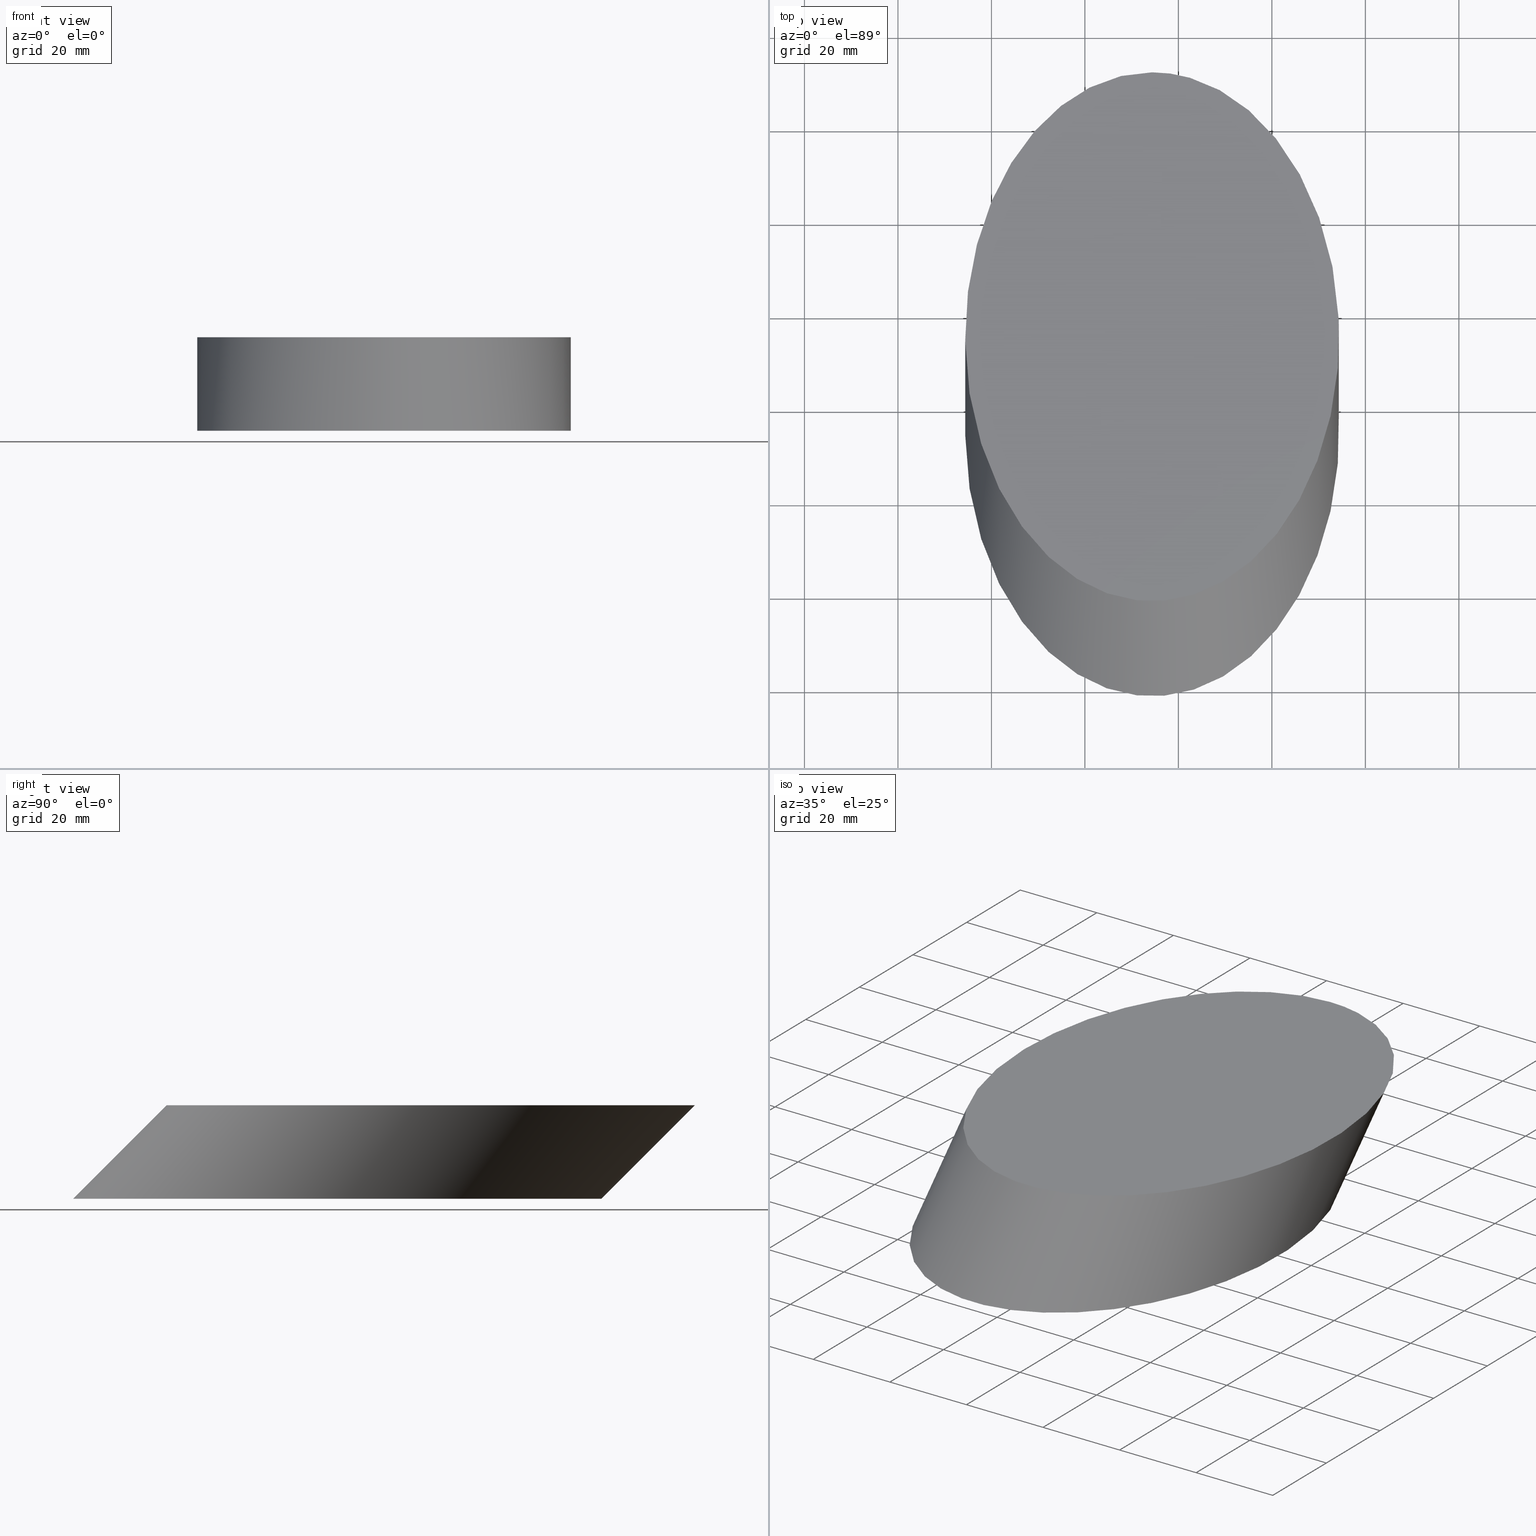
[diagram: canonical four-view strip — front | top / right | iso, engineering-drawing reading convention]
A machine part, canonical four-view strip (front | top / right | iso — engineering-drawing reading convention). The complete STEP part file that produces these views, byte-faithful:
ISO-10303-21;
HEADER;
FILE_DESCRIPTION (( 'STEP AP203' ),
    '1' );
FILE_NAME ('290007.STEP',
    '2022-05-24T07:40:24',
    ( '' ),
    ( '' ),
    'SwSTEP 2.0',
    'SolidWorks 2020',
    '' );
FILE_SCHEMA (( 'CONFIG_CONTROL_DESIGN' ));
ENDSEC;

DATA;
#1 = MANIFOLD_SOLID_BREP ( '͹̨-����1', #129 ) ;
#2 = ADVANCED_BREP_SHAPE_REPRESENTATION ( '290007', ( #1, #136 ), #50 ) ;
#3 = LOCAL_TIME ( 15, 40, 24.00000000000000000, #44 ) ;
#4 = CARTESIAN_POINT ( 'NONE',  ( -25.60761701828393910, 92.36387153032208630, -1.040834085586084099E-14 ) ) ;
#5 = CARTESIAN_POINT ( 'NONE',  ( 134.3923829817160254, -20.78612846967790873, 0.000000000000000000 ) ) ;
#6 = ADVANCED_FACE ( 'NONE', ( #28, #98 ), #40, .T. ) ;
#7 = FACE_OUTER_BOUND ( 'NONE', #37, .T. ) ;
#8 = CARTESIAN_POINT ( 'NONE',  ( 0.000000000000000000, 0.000000000000000000, 0.000000000000000000 ) ) ;
#9 = CARTESIAN_POINT ( 'NONE',  ( 54.39238298171605379, 92.36387153032210051, 0.000000000000000000 ) ) ;
#10 = DIRECTION ( 'NONE',  ( 0.000000000000000000, 0.000000000000000000, 1.000000000000000000 ) ) ;
#11 = DATE_AND_TIME ( #125, #142 ) ;
#12 = EDGE_CURVE ( 'NONE', #30, #30, #13, .T. ) ;
#13 =( BOUNDED_CURVE ( )  B_SPLINE_CURVE ( 3, ( #123, #63, #48, #99, #144, #15, #16 ),
 .UNSPECIFIED., .T., .T. ) 
 B_SPLINE_CURVE_WITH_KNOTS ( ( 4, 3, 4 ),
 ( 0.000000000000000000, 3.141592653589793116, 6.283185307179586232 ),
 .UNSPECIFIED. ) 
 CURVE ( )  GEOMETRIC_REPRESENTATION_ITEM ( )  RATIONAL_B_SPLINE_CURVE ( ( 1.000000000000000000, 0.3333333333333333703, 0.3333333333333333703, 1.000000000000000000, 0.3333333333333333703, 0.3333333333333333703, 1.000000000000000000 ) ) 
 REPRESENTATION_ITEM ( '' )  );
#14 = CARTESIAN_POINT ( 'NONE',  ( 54.39238298171605379, 92.36387153032208630, -1.040834085586084257E-14 ) ) ;
#15 = CARTESIAN_POINT ( 'NONE',  ( 134.3923829817160538, 72.36387153032197261, -20.00000000000000355 ) ) ;
#16 = CARTESIAN_POINT ( 'NONE',  ( 54.39238298171605379, 72.36387153032198682, -20.00000000000000355 ) ) ;
#17 = APPROVAL_ROLE ( '' ) ;
#18 = VERTEX_POINT ( 'NONE', #9 ) ;
#19 = APPROVAL_DATE_TIME ( #54, #88 ) ;
#20 = CALENDAR_DATE ( 2022, 24, 5 ) ;
#21 = SHAPE_DEFINITION_REPRESENTATION ( #71, #2 ) ;
#22 = SECURITY_CLASSIFICATION ( '', '', #45 ) ;
#23 = CARTESIAN_POINT ( 'NONE',  ( 134.3923829817160538, 92.36387153032208630, -1.040834085586084099E-14 ) ) ;
#24 = ORIENTED_EDGE ( 'NONE', *, *, #100, .F. ) ;
#25 = PRODUCT ( '290007', '290007', '', ( #141 ) ) ;
#26 = CARTESIAN_POINT ( 'NONE',  ( 54.39238298171604669, -40.78612846967801886, -20.00000000000000711 ) ) ;
#27 = CC_DESIGN_PERSON_AND_ORGANIZATION_ASSIGNMENT ( #92, #140, ( #59 ) ) ;
#28 = FACE_OUTER_BOUND ( 'NONE', #47, .T. ) ;
#29 = PERSON_AND_ORGANIZATION_ROLE ( 'creator' ) ;
#30 = VERTEX_POINT ( 'NONE', #51 ) ;
#31 = PERSON_AND_ORGANIZATION ( #113, #76 ) ;
#32 = PERSON_AND_ORGANIZATION ( #113, #76 ) ;
#33 = APPROVAL_STATUS ( 'not_yet_approved' ) ;
#34 = CC_DESIGN_PERSON_AND_ORGANIZATION_ASSIGNMENT ( #31, #55, ( #22 ) ) ;
#35 = CC_DESIGN_DATE_AND_TIME_ASSIGNMENT ( #95, #116, ( #22 ) ) ;
#36 = CARTESIAN_POINT ( 'NONE',  ( 54.39238298171605379, 92.36387153032208630, -1.040834085586084257E-14 ) ) ;
#37 = EDGE_LOOP ( 'NONE', ( #135 ) ) ;
#38 = UNCERTAINTY_MEASURE_WITH_UNIT (LENGTH_MEASURE( 1.000000000000000082E-05 ), #139, 'distance_accuracy_value', 'NONE');
#39 = APPROVAL_PERSON_ORGANIZATION ( #84, #88, #17 ) ;
#40 =( BOUNDED_SURFACE ( )  B_SPLINE_SURFACE ( 3, 1, ( 
 ( #77, #14 ),
 ( #111, #4 ),
 ( #62, #132 ),
 ( #26, #78 ),
 ( #122, #133 ),
 ( #97, #23 ),
 ( #65, #36 ) ),
 .UNSPECIFIED., .T., .F., .F. ) 
 B_SPLINE_SURFACE_WITH_KNOTS ( ( 4, 3, 4 ),
 ( 2, 2 ),
 ( 0.000000000000000000, 0.5000000000000000000, 1.000000000000000000 ),
 ( 0.000000000000000000, 1.000000000000000000 ),
 .UNSPECIFIED. ) 
 GEOMETRIC_REPRESENTATION_ITEM ( )  RATIONAL_B_SPLINE_SURFACE ( (
 ( 1.000000000000000000, 1.000000000000000000),
 ( 0.3333333333333333703, 0.3333333333333333703),
 ( 0.3333333333333333703, 0.3333333333333333703),
 ( 1.000000000000000000, 1.000000000000000000),
 ( 0.3333333333333333703, 0.3333333333333333703),
 ( 0.3333333333333333703, 0.3333333333333333703),
 ( 1.000000000000000000, 1.000000000000000000) ) ) 
 REPRESENTATION_ITEM ( '' )  SURFACE ( )  );
#41 = DIRECTION ( 'NONE',  ( 1.000000000000000000, 0.000000000000000000, -0.000000000000000000 ) ) ;
#42 = CARTESIAN_POINT ( 'NONE',  ( -25.60761701828394266, -20.78612846967788030, 0.000000000000000000 ) ) ;
#43 = FACE_OUTER_BOUND ( 'NONE', #75, .T. ) ;
#44 = COORDINATED_UNIVERSAL_TIME_OFFSET ( 8, 0, .AHEAD. ) ;
#45 = SECURITY_CLASSIFICATION_LEVEL ( 'unclassified' ) ;
#46 = CC_DESIGN_PERSON_AND_ORGANIZATION_ASSIGNMENT ( #104, #49, ( #59 ) ) ;
#47 = EDGE_LOOP ( 'NONE', ( #79 ) ) ;
#48 = CARTESIAN_POINT ( 'NONE',  ( -25.60761701828394266, -40.78612846967799754, -20.00000000000000355 ) ) ;
#49 = PERSON_AND_ORGANIZATION_ROLE ( 'creator' ) ;
#50 =( GEOMETRIC_REPRESENTATION_CONTEXT ( 3 ) GLOBAL_UNCERTAINTY_ASSIGNED_CONTEXT ( ( #38 ) ) GLOBAL_UNIT_ASSIGNED_CONTEXT ( ( #139, #145, #126 ) ) REPRESENTATION_CONTEXT ( 'NONE', 'WORKASPACE' ) );
#51 = CARTESIAN_POINT ( 'NONE',  ( 54.39238298171605379, 72.36387153032198682, -20.00000000000000355 ) ) ;
#52 = COORDINATED_UNIVERSAL_TIME_OFFSET ( 8, 0, .AHEAD. ) ;
#53 = CALENDAR_DATE ( 2022, 24, 5 ) ;
#54 = DATE_AND_TIME ( #53, #3 ) ;
#55 = PERSON_AND_ORGANIZATION_ROLE ( 'classification_officer' ) ;
#56 = PRODUCT_RELATED_PRODUCT_CATEGORY ( 'detail', '', ( #25 ) ) ;
#57 = LOCAL_TIME ( 15, 40, 24.00000000000000000, #52 ) ;
#58 = ADVANCED_FACE ( 'NONE', ( #7 ), #101, .T. ) ;
#59 = PRODUCT_DEFINITION_FORMATION_WITH_SPECIFIED_SOURCE ( '�κ�', '', #25, .NOT_KNOWN. ) ;
#60 = DESIGN_CONTEXT ( 'detailed design', #74, 'design' ) ;
#61 = ORIENTED_EDGE ( 'NONE', *, *, #12, .F. ) ;
#62 = CARTESIAN_POINT ( 'NONE',  ( -25.60761701828394266, -40.78612846967800465, -20.00000000000000711 ) ) ;
#63 = CARTESIAN_POINT ( 'NONE',  ( -25.60761701828393910, 72.36387153032197261, -20.00000000000000355 ) ) ;
#64 = LOCAL_TIME ( 15, 40, 24.00000000000000000, #69 ) ;
#65 = CARTESIAN_POINT ( 'NONE',  ( 54.39238298171605379, 72.36387153032197261, -20.00000000000000711 ) ) ;
#66 = CARTESIAN_POINT ( 'NONE',  ( 54.39238298171604669, -20.78612846967789451, 0.000000000000000000 ) ) ;
#67 = DATE_AND_TIME ( #117, #64 ) ;
#68 = CARTESIAN_POINT ( 'NONE',  ( 54.39238298171605379, 92.36387153032210051, 0.000000000000000000 ) ) ;
#69 = COORDINATED_UNIVERSAL_TIME_OFFSET ( 8, 0, .AHEAD. ) ;
#70 = APPROVAL_STATUS ( 'not_yet_approved' ) ;
#71 = PRODUCT_DEFINITION_SHAPE ( 'NONE', 'NONE',  #119 ) ;
#72 = PERSON_AND_ORGANIZATION ( #113, #76 ) ;
#73 = DATE_TIME_ROLE ( 'creation_date' ) ;
#74 = APPLICATION_CONTEXT ( 'configuration controlled 3d designs of mechanical parts and assemblies' ) ;
#75 = EDGE_LOOP ( 'NONE', ( #61 ) ) ;
#76 = ORGANIZATION ( 'δָ��', 'δָ��', '' ) ;
#77 = CARTESIAN_POINT ( 'NONE',  ( 54.39238298171605379, 72.36387153032197261, -20.00000000000000711 ) ) ;
#78 = CARTESIAN_POINT ( 'NONE',  ( 54.39238298171604669, -20.78612846967790517, -1.040834085586084257E-14 ) ) ;
#79 = ORIENTED_EDGE ( 'NONE', *, *, #12, .T. ) ;
#80 = DIRECTION ( 'NONE',  ( 0.000000000000000000, 0.000000000000000000, 1.000000000000000000 ) ) ;
#81 = CARTESIAN_POINT ( 'NONE',  ( 54.39238298171605379, 35.78887153032210477, 0.000000000000000000 ) ) ;
#82 = COORDINATED_UNIVERSAL_TIME_OFFSET ( 8, 0, .AHEAD. ) ;
#83 = PERSON_AND_ORGANIZATION_ROLE ( 'design_owner' ) ;
#84 = PERSON_AND_ORGANIZATION ( #113, #76 ) ;
#85 = CALENDAR_DATE ( 2022, 24, 5 ) ;
#86 = APPLICATION_CONTEXT ( 'configuration controlled 3d designs of mechanical parts and assemblies' ) ;
#87 = CC_DESIGN_PERSON_AND_ORGANIZATION_ASSIGNMENT ( #32, #83, ( #25 ) ) ;
#88 = APPROVAL ( #33, 'δָ��' ) ;
#89 = CC_DESIGN_APPROVAL ( #94, ( #59 ) ) ;
#90 = CC_DESIGN_APPROVAL ( #88, ( #119 ) ) ;
#91 = CARTESIAN_POINT ( 'NONE',  ( 54.39238298171605379, 92.36387153032210051, 0.000000000000000000 ) ) ;
#92 = PERSON_AND_ORGANIZATION ( #113, #76 ) ;
#93 = DIRECTION ( 'NONE',  ( 1.000000000000000000, 0.000000000000000000, 0.000000000000000000 ) ) ;
#94 = APPROVAL ( #70, 'δָ��' ) ;
#95 = DATE_AND_TIME ( #20, #110 ) ;
#96 = CC_DESIGN_SECURITY_CLASSIFICATION ( #22, ( #59 ) ) ;
#97 = CARTESIAN_POINT ( 'NONE',  ( 134.3923829817160538, 72.36387153032197261, -20.00000000000000711 ) ) ;
#98 = FACE_OUTER_BOUND ( 'NONE', #121, .T. ) ;
#99 = CARTESIAN_POINT ( 'NONE',  ( 54.39238298171604669, -40.78612846967801175, -20.00000000000000355 ) ) ;
#100 = EDGE_CURVE ( 'NONE', #18, #18, #105, .T. ) ;
#101 = PLANE ( 'NONE',  #112 ) ;
#102 = CARTESIAN_POINT ( 'NONE',  ( 134.3923829817160538, 92.36387153032210051, 0.000000000000000000 ) ) ;
#103 = APPROVAL_STATUS ( 'not_yet_approved' ) ;
#104 = PERSON_AND_ORGANIZATION ( #113, #76 ) ;
#105 =( BOUNDED_CURVE ( )  B_SPLINE_CURVE ( 3, ( #68, #146, #42, #66, #5, #102, #91 ),
 .UNSPECIFIED., .T., .F. ) 
 B_SPLINE_CURVE_WITH_KNOTS ( ( 4, 3, 4 ),
 ( 0.000000000000000000, 3.141592653589793116, 6.283185307179586232 ),
 .UNSPECIFIED. ) 
 CURVE ( )  GEOMETRIC_REPRESENTATION_ITEM ( )  RATIONAL_B_SPLINE_CURVE ( ( 1.000000000000000000, 0.3333333333333333703, 0.3333333333333333703, 1.000000000000000000, 0.3333333333333333703, 0.3333333333333333703, 1.000000000000000000 ) ) 
 REPRESENTATION_ITEM ( '' )  );
#106 = DATE_AND_TIME ( #85, #57 ) ;
#107 = APPROVAL_ROLE ( '' ) ;
#108 = APPROVAL ( #103, 'δָ��' ) ;
#109 = AXIS2_PLACEMENT_3D ( 'NONE', #115, #80, #124 ) ;
#110 = LOCAL_TIME ( 15, 40, 24.00000000000000000, #127 ) ;
#111 = CARTESIAN_POINT ( 'NONE',  ( -25.60761701828393910, 72.36387153032197261, -20.00000000000000711 ) ) ;
#112 = AXIS2_PLACEMENT_3D ( 'NONE', #81, #114, #41 ) ;
#113 = PERSON ( 'δָ��', 'δָ��', 'δָ��', ('δָ��'), ('δָ��'), ('δָ��') ) ;
#114 = DIRECTION ( 'NONE',  ( 0.000000000000000000, 0.000000000000000000, 1.000000000000000000 ) ) ;
#115 = CARTESIAN_POINT ( 'NONE',  ( 54.39238298171605379, 15.78887153032198754, -20.00000000000000355 ) ) ;
#116 = DATE_TIME_ROLE ( 'classification_date' ) ;
#117 = CALENDAR_DATE ( 2022, 24, 5 ) ;
#118 = APPROVAL_ROLE ( '' ) ;
#119 = PRODUCT_DEFINITION ( 'δ֪', '', #59, #60 ) ;
#120 = CC_DESIGN_PERSON_AND_ORGANIZATION_ASSIGNMENT ( #151, #29, ( #119 ) ) ;
#121 = EDGE_LOOP ( 'NONE', ( #24 ) ) ;
#122 = CARTESIAN_POINT ( 'NONE',  ( 134.3923829817160254, -40.78612846967803307, -20.00000000000000711 ) ) ;
#123 = CARTESIAN_POINT ( 'NONE',  ( 54.39238298171605379, 72.36387153032198682, -20.00000000000000355 ) ) ;
#124 = DIRECTION ( 'NONE',  ( 1.000000000000000000, 0.000000000000000000, -0.000000000000000000 ) ) ;
#125 = CALENDAR_DATE ( 2022, 24, 5 ) ;
#126 =( NAMED_UNIT ( * ) SI_UNIT ( $, .STERADIAN. ) SOLID_ANGLE_UNIT ( ) );
#127 = COORDINATED_UNIVERSAL_TIME_OFFSET ( 8, 0, .AHEAD. ) ;
#128 = APPROVAL_DATE_TIME ( #11, #108 ) ;
#129 = CLOSED_SHELL ( 'NONE', ( #6, #131, #58 ) ) ;
#130 = APPROVAL_PERSON_ORGANIZATION ( #148, #94, #118 ) ;
#131 = ADVANCED_FACE ( 'NONE', ( #43 ), #138, .F. ) ;
#132 = CARTESIAN_POINT ( 'NONE',  ( -25.60761701828394266, -20.78612846967789451, -1.040834085586084099E-14 ) ) ;
#133 = CARTESIAN_POINT ( 'NONE',  ( 134.3923829817160254, -20.78612846967791938, -1.040834085586084099E-14 ) ) ;
#134 = CC_DESIGN_DATE_AND_TIME_ASSIGNMENT ( #106, #73, ( #119 ) ) ;
#135 = ORIENTED_EDGE ( 'NONE', *, *, #100, .T. ) ;
#136 = AXIS2_PLACEMENT_3D ( 'NONE', #8, #10, #93 ) ;
#137 = APPLICATION_PROTOCOL_DEFINITION ( 'international standard', 'config_control_design', 1994, #86 ) ;
#138 = PLANE ( 'NONE',  #109 ) ;
#139 =( LENGTH_UNIT ( ) NAMED_UNIT ( * ) SI_UNIT ( .MILLI., .METRE. ) );
#140 = PERSON_AND_ORGANIZATION_ROLE ( 'design_supplier' ) ;
#141 = MECHANICAL_CONTEXT ( 'NONE', #86, 'mechanical' ) ;
#142 = LOCAL_TIME ( 15, 40, 24.00000000000000000, #82 ) ;
#143 = CC_DESIGN_APPROVAL ( #108, ( #22 ) ) ;
#144 = CARTESIAN_POINT ( 'NONE',  ( 134.3923829817160254, -40.78612846967802597, -20.00000000000000355 ) ) ;
#145 =( NAMED_UNIT ( * ) PLANE_ANGLE_UNIT ( ) SI_UNIT ( $, .RADIAN. ) );
#146 = CARTESIAN_POINT ( 'NONE',  ( -25.60761701828393910, 92.36387153032210051, 0.000000000000000000 ) ) ;
#147 = APPLICATION_PROTOCOL_DEFINITION ( 'international standard', 'config_control_design', 1994, #74 ) ;
#148 = PERSON_AND_ORGANIZATION ( #113, #76 ) ;
#149 = APPROVAL_DATE_TIME ( #67, #94 ) ;
#150 = APPROVAL_PERSON_ORGANIZATION ( #72, #108, #107 ) ;
#151 = PERSON_AND_ORGANIZATION ( #113, #76 ) ;
ENDSEC;
END-ISO-10303-21;
